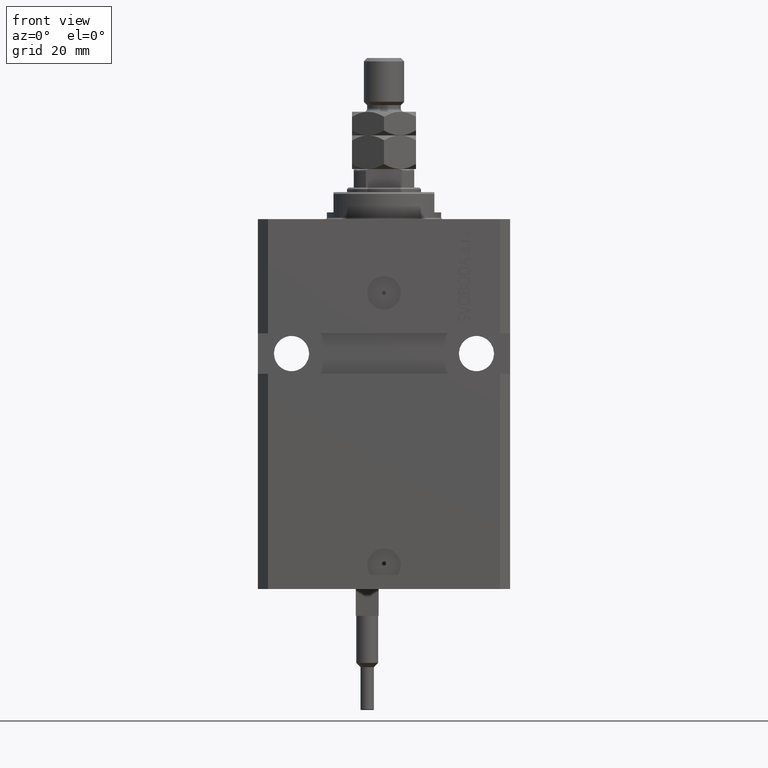
[diagram: clean part render]
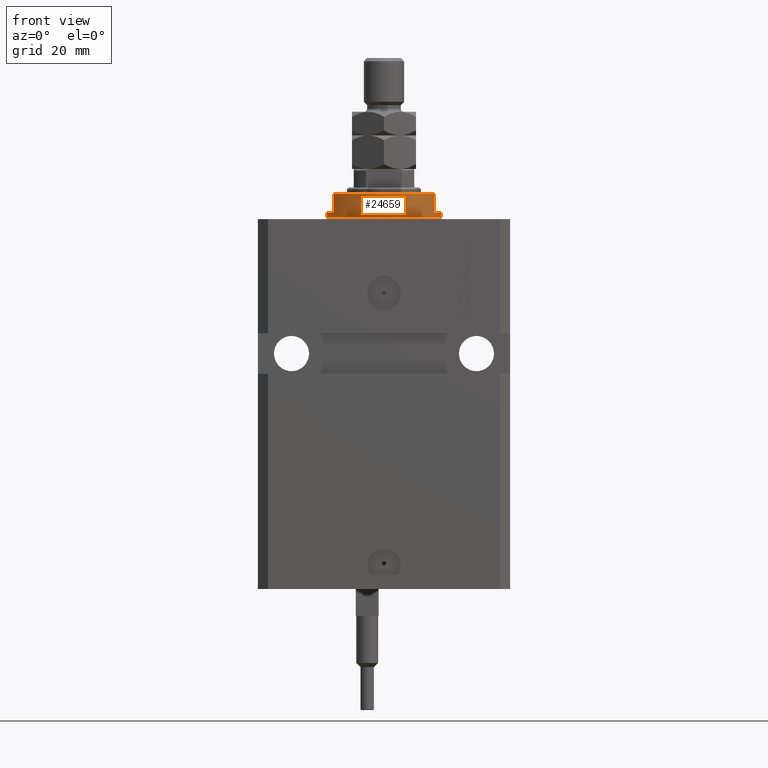
[diagram: same view with one face highlighted and labeled with its STEP entity id]
A machine part, front view. The second image highlights one B-rep face of the part: STEP entity #24659.
In plain terms, the highlighted cylindrical surface (partial cylindrical patch) has radius 17 mm, axis along (0, 0, -1).
Its self-contained STEP definition (entity closure, byte-faithful):
#1149 = CARTESIAN_POINT ( 'NONE',  ( 0.000000000000000000, 0.000000000000000000, -2.000000000000000000 ) ) ;
#2001 = CARTESIAN_POINT ( 'NONE',  ( 14.99999999999999645, -8.000000000000003553, -2.000000000000000000 ) ) ;
#2043 = EDGE_LOOP ( 'NONE', ( #16722, #18983, #23055, #3247, #3936, #42397, #7892, #20396 ) ) ;
#2151 = EDGE_CURVE ( 'NONE', #32613, #40007, #29242, .T. ) ;
#2193 = EDGE_CURVE ( 'NONE', #6127, #20105, #22860, .T. ) ;
#2692 = DIRECTION ( 'NONE',  ( 1.000000000000000000, 0.000000000000000000, 0.000000000000000000 ) ) ;
#3247 = ORIENTED_EDGE ( 'NONE', *, *, #38139, .T. ) ;
#3936 = ORIENTED_EDGE ( 'NONE', *, *, #18645, .F. ) ;
#5173 = CARTESIAN_POINT ( 'NONE',  ( 0.000000000000000000, 0.000000000000000000, -2.000000000000000000 ) ) ;
#5531 = DIRECTION ( 'NONE',  ( -0.000000000000000000, -0.000000000000000000, 1.000000000000000000 ) ) ;
#6127 = VERTEX_POINT ( 'NONE', #45336 ) ;
#6408 = EDGE_CURVE ( 'NONE', #40007, #20105, #26097, .T. ) ;
#7641 = CIRCLE ( 'NONE', #25962, 17.00000000000000000 ) ;
#7892 = ORIENTED_EDGE ( 'NONE', *, *, #46766, .T. ) ;
#8295 = VECTOR ( 'NONE', #40866, 1000.000000000000000 ) ;
#8637 = LINE ( 'NONE', #13383, #41377 ) ;
#9266 = CARTESIAN_POINT ( 'NONE',  ( -17.00000000000000000, 2.081899558550500280E-15, -8.000000000000000000 ) ) ;
#9753 = CYLINDRICAL_SURFACE ( 'NONE', #15260, 17.00000000000000000 ) ;
#11733 = AXIS2_PLACEMENT_3D ( 'NONE', #30011, #21839, #2692 ) ;
#11981 = VECTOR ( 'NONE', #16875, 1000.000000000000000 ) ;
#13192 = DIRECTION ( 'NONE',  ( 0.000000000000000000, 0.000000000000000000, 1.000000000000000000 ) ) ;
#13383 = CARTESIAN_POINT ( 'NONE',  ( -15.00000000000000000, -8.000000000000001776, -8.000000000000000000 ) ) ;
#13479 = DIRECTION ( 'NONE',  ( -0.000000000000000000, -0.000000000000000000, 1.000000000000000000 ) ) ;
#14431 = CARTESIAN_POINT ( 'NONE',  ( -15.00000000000000000, -8.000000000000001776, -7.500000000000014211 ) ) ;
#15260 = AXIS2_PLACEMENT_3D ( 'NONE', #40323, #13479, #47797 ) ;
#15618 = EDGE_CURVE ( 'NONE', #46740, #27265, #25732, .T. ) ;
#16722 = ORIENTED_EDGE ( 'NONE', *, *, #6408, .F. ) ;
#16875 = DIRECTION ( 'NONE',  ( 0.000000000000000000, 0.000000000000000000, -1.000000000000000000 ) ) ;
#18515 = EDGE_CURVE ( 'NONE', #32613, #42495, #8637, .T. ) ;
#18645 = EDGE_CURVE ( 'NONE', #27265, #45214, #20607, .T. ) ;
#18983 = ORIENTED_EDGE ( 'NONE', *, *, #2151, .F. ) ;
#20105 = VERTEX_POINT ( 'NONE', #41568 ) ;
#20367 = DIRECTION ( 'NONE',  ( 0.000000000000000000, 0.000000000000000000, -1.000000000000000000 ) ) ;
#20396 = ORIENTED_EDGE ( 'NONE', *, *, #2193, .T. ) ;
#20607 = LINE ( 'NONE', #46931, #11981 ) ;
#21839 = DIRECTION ( 'NONE',  ( -0.000000000000000000, -0.000000000000000000, -1.000000000000000000 ) ) ;
#22860 = CIRCLE ( 'NONE', #11733, 17.00000000000000000 ) ;
#23055 = ORIENTED_EDGE ( 'NONE', *, *, #18515, .T. ) ;
#24659 = ADVANCED_FACE ( 'NONE', ( #32626 ), #9753, .T. ) ;
#25726 = LINE ( 'NONE', #45072, #8295 ) ;
#25732 = CIRCLE ( 'NONE', #41587, 17.00000000000000000 ) ;
#25962 = AXIS2_PLACEMENT_3D ( 'NONE', #47249, #13192, #28375 ) ;
#26097 = LINE ( 'NONE', #9266, #38874 ) ;
#27265 = VERTEX_POINT ( 'NONE', #2001 ) ;
#28375 = DIRECTION ( 'NONE',  ( -1.000000000000000000, 0.000000000000000000, 0.000000000000000000 ) ) ;
#29242 = CIRCLE ( 'NONE', #37164, 17.00000000000000000 ) ;
#30011 = CARTESIAN_POINT ( 'NONE',  ( 0.000000000000000000, 0.000000000000000000, -0.5000000000000004441 ) ) ;
#32613 = VERTEX_POINT ( 'NONE', #35823 ) ;
#32626 = FACE_OUTER_BOUND ( 'NONE', #2043, .T. ) ;
#33173 = CARTESIAN_POINT ( 'NONE',  ( 17.00000000000000000, 0.000000000000000000, -2.000000000000000000 ) ) ;
#35488 = DIRECTION ( 'NONE',  ( 0.000000000000000000, 0.000000000000000000, -1.000000000000000000 ) ) ;
#35491 = DIRECTION ( 'NONE',  ( -1.000000000000000000, 0.000000000000000000, 0.000000000000000000 ) ) ;
#35823 = CARTESIAN_POINT ( 'NONE',  ( -14.99999999999999645, -8.000000000000003553, -2.000000000000000000 ) ) ;
#35960 = DIRECTION ( 'NONE',  ( -1.000000000000000000, 0.000000000000000000, 0.000000000000000000 ) ) ;
#37164 = AXIS2_PLACEMENT_3D ( 'NONE', #5173, #20367, #35491 ) ;
#38139 = EDGE_CURVE ( 'NONE', #42495, #45214, #7641, .T. ) ;
#38874 = VECTOR ( 'NONE', #5531, 1000.000000000000000 ) ;
#40007 = VERTEX_POINT ( 'NONE', #40969 ) ;
#40323 = CARTESIAN_POINT ( 'NONE',  ( 0.000000000000000000, 0.000000000000000000, -8.000000000000000000 ) ) ;
#40866 = DIRECTION ( 'NONE',  ( -0.000000000000000000, -0.000000000000000000, 1.000000000000000000 ) ) ;
#40969 = CARTESIAN_POINT ( 'NONE',  ( -17.00000000000000000, 2.081899558550500280E-15, -2.000000000000000000 ) ) ;
#41377 = VECTOR ( 'NONE', #35488, 1000.000000000000000 ) ;
#41568 = CARTESIAN_POINT ( 'NONE',  ( -17.00000000000000000, 2.081899558550500280E-15, -0.5000000000000004441 ) ) ;
#41587 = AXIS2_PLACEMENT_3D ( 'NONE', #1149, #46896, #35960 ) ;
#42397 = ORIENTED_EDGE ( 'NONE', *, *, #15618, .F. ) ;
#42495 = VERTEX_POINT ( 'NONE', #14431 ) ;
#43443 = CARTESIAN_POINT ( 'NONE',  ( 15.00000000000000000, -8.000000000000001776, -7.500000000000013323 ) ) ;
#45072 = CARTESIAN_POINT ( 'NONE',  ( 17.00000000000000000, 0.000000000000000000, -8.000000000000000000 ) ) ;
#45214 = VERTEX_POINT ( 'NONE', #43443 ) ;
#45336 = CARTESIAN_POINT ( 'NONE',  ( 17.00000000000000000, 0.000000000000000000, -0.5000000000000004441 ) ) ;
#46740 = VERTEX_POINT ( 'NONE', #33173 ) ;
#46766 = EDGE_CURVE ( 'NONE', #46740, #6127, #25726, .T. ) ;
#46896 = DIRECTION ( 'NONE',  ( 0.000000000000000000, 0.000000000000000000, -1.000000000000000000 ) ) ;
#46931 = CARTESIAN_POINT ( 'NONE',  ( 15.00000000000000000, -8.000000000000001776, -8.000000000000000000 ) ) ;
#47249 = CARTESIAN_POINT ( 'NONE',  ( 0.000000000000000000, 0.000000000000000000, -7.500000000000013323 ) ) ;
#47797 = DIRECTION ( 'NONE',  ( 1.000000000000000000, 0.000000000000000000, 0.000000000000000000 ) ) ;